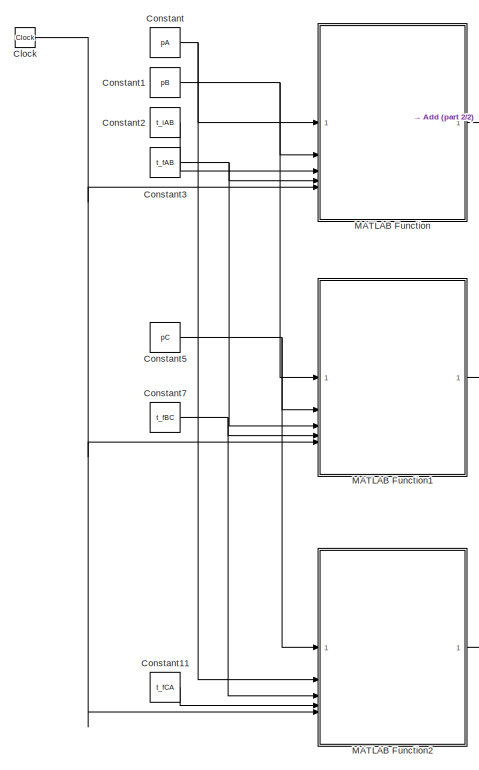
[diagram: root canvas - part 1/2, left side, full height]
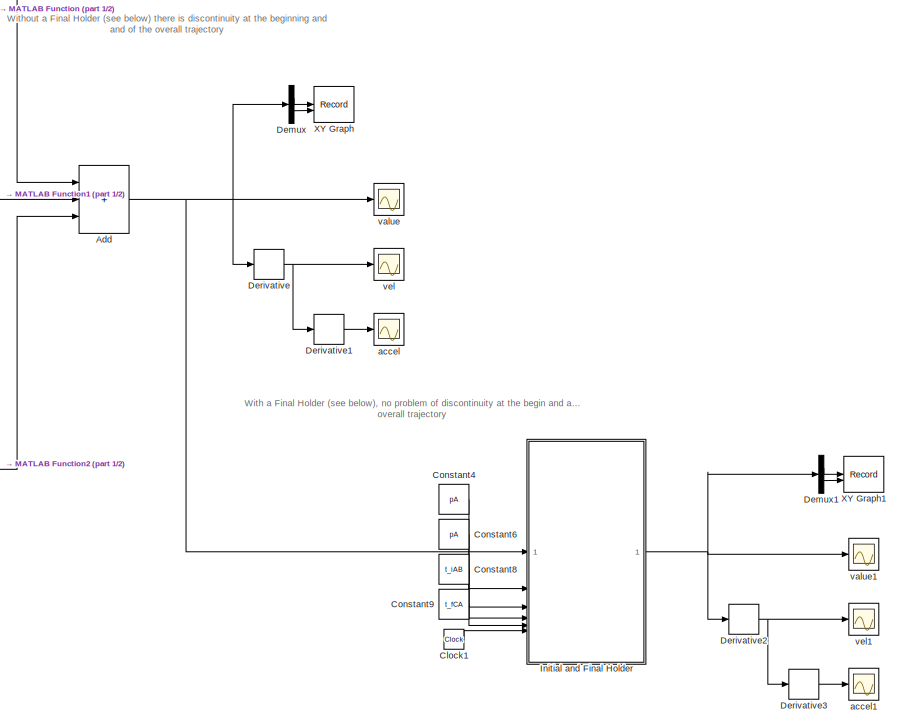
[diagram: root canvas - part 2/2, right side, full height]
MODEL slx_b21bd1f5aaba
KIND model
CONFIG AbsTol = auto
CONFIG EnableMultiTasking = off
CONFIG FixedStep = samplingTime
CONFIG MaxStep = auto
CONFIG MinStep = auto
CONFIG RelTol = 1e-3
CONFIG SampleTimeConstraint = Unconstrained
CONFIG SolverName = FixedStepAuto
CONFIG StartTime = 0.0
CONFIG StopTime = 10.0
BLOCK [Sum] Add
  IconShape = rectangular
  Inputs = +++
BLOCK [Clock] Clock
BLOCK [Clock] Clock1
BLOCK [Constant] Constant
  Value = pA
BLOCK [Constant] Constant1
  Value = pB
BLOCK [Constant] Constant11
  Value = t_fCA
BLOCK [Constant] Constant2
  Value = t_iAB
BLOCK [Constant] Constant3
  Value = t_fAB
BLOCK [Constant] Constant4
  Value = pA
BLOCK [Constant] Constant5
  Value = pC
BLOCK [Constant] Constant6
  Value = pA
BLOCK [Constant] Constant7
  Value = t_fBC
BLOCK [Constant] Constant8
  Value = t_iAB
BLOCK [Constant] Constant9
  Value = t_fCA
BLOCK [Demux] Demux
  Outputs = 2
BLOCK [Demux] Demux1
  Outputs = 2
BLOCK [Derivative] Derivative
BLOCK [Derivative] Derivative1
BLOCK [Derivative] Derivative2
BLOCK [Derivative] Derivative3
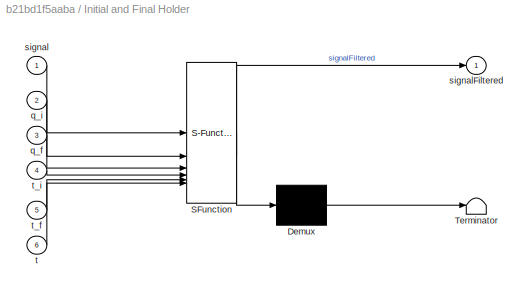
BLOCK [SubSystem] Initial and Final Holder
  ErrorFcn = Stateflow.Translate.translate
  PermitHierarchicalResolution = ExplicitOnly
  SFBlockType = MATLAB Function
  TreatAsAtomicUnit = on
BLOCK [Demux] Initial and Final Holder/ Demux 
  Outputs = 1
BLOCK [S-Function] Initial and Final Holder/ SFunction 
  EnableBusSupport = on
  FunctionName = sf_sfun
  PortCounts = [6 2]
  SFcnIsStateOwnerBlock = off
  SFunctionDeploymentMode = off
  Tag = Stateflow S-Function 4
BLOCK [Terminator] Initial and Final Holder/ Terminator 
BLOCK [Inport] Initial and Final Holder/q_f
  Port = 3
BLOCK [Inport] Initial and Final Holder/q_i
  Port = 2
BLOCK [Inport] Initial and Final Holder/signal
BLOCK [Outport] Initial and Final Holder/signalFiltered
BLOCK [Inport] Initial and Final Holder/t
  Port = 6
BLOCK [Inport] Initial and Final Holder/t_f
  Port = 5
BLOCK [Inport] Initial and Final Holder/t_i
  Port = 4
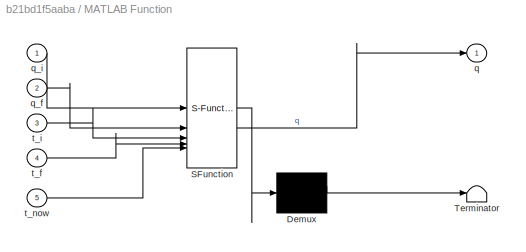
BLOCK [SubSystem] MATLAB Function
  ErrorFcn = Stateflow.Translate.translate
  PermitHierarchicalResolution = ExplicitOnly
  SFBlockType = MATLAB Function
  TreatAsAtomicUnit = on
BLOCK [Demux] MATLAB Function/ Demux 
  Outputs = 1
BLOCK [S-Function] MATLAB Function/ SFunction 
  EnableBusSupport = on
  FunctionName = sf_sfun
  PortCounts = [5 2]
  SFcnIsStateOwnerBlock = off
  SFunctionDeploymentMode = off
  Tag = Stateflow S-Function 2
BLOCK [Terminator] MATLAB Function/ Terminator 
BLOCK [Outport] MATLAB Function/q
BLOCK [Inport] MATLAB Function/q_f
  Port = 2
BLOCK [Inport] MATLAB Function/q_i
BLOCK [Inport] MATLAB Function/t_f
  Port = 4
BLOCK [Inport] MATLAB Function/t_i
  Port = 3
BLOCK [Inport] MATLAB Function/t_now
  Port = 5
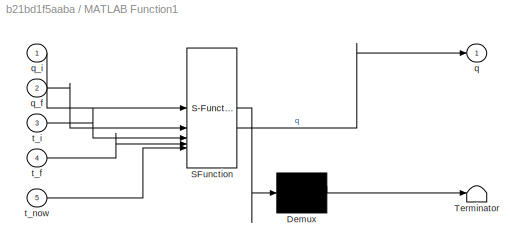
BLOCK [SubSystem] MATLAB Function1
  ErrorFcn = Stateflow.Translate.translate
  PermitHierarchicalResolution = ExplicitOnly
  SFBlockType = MATLAB Function
  TreatAsAtomicUnit = on
BLOCK [Demux] MATLAB Function1/ Demux 
  Outputs = 1
BLOCK [S-Function] MATLAB Function1/ SFunction 
  EnableBusSupport = on
  FunctionName = sf_sfun
  PortCounts = [5 2]
  SFcnIsStateOwnerBlock = off
  SFunctionDeploymentMode = off
  Tag = Stateflow S-Function 1
BLOCK [Terminator] MATLAB Function1/ Terminator 
BLOCK [Outport] MATLAB Function1/q
BLOCK [Inport] MATLAB Function1/q_f
  Port = 2
BLOCK [Inport] MATLAB Function1/q_i
BLOCK [Inport] MATLAB Function1/t_f
  Port = 4
BLOCK [Inport] MATLAB Function1/t_i
  Port = 3
BLOCK [Inport] MATLAB Function1/t_now
  Port = 5
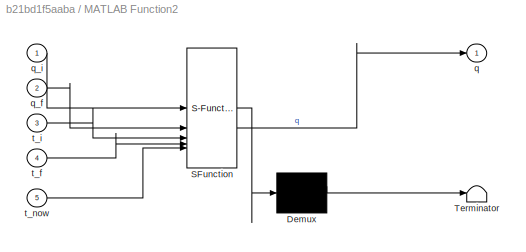
BLOCK [SubSystem] MATLAB Function2
  ErrorFcn = Stateflow.Translate.translate
  PermitHierarchicalResolution = ExplicitOnly
  SFBlockType = MATLAB Function
  TreatAsAtomicUnit = on
BLOCK [Demux] MATLAB Function2/ Demux 
  Outputs = 1
BLOCK [S-Function] MATLAB Function2/ SFunction 
  EnableBusSupport = on
  FunctionName = sf_sfun
  PortCounts = [5 2]
  SFcnIsStateOwnerBlock = off
  SFunctionDeploymentMode = off
  Tag = Stateflow S-Function 3
BLOCK [Terminator] MATLAB Function2/ Terminator 
BLOCK [Outport] MATLAB Function2/q
BLOCK [Inport] MATLAB Function2/q_f
  Port = 2
BLOCK [Inport] MATLAB Function2/q_i
BLOCK [Inport] MATLAB Function2/t_f
  Port = 4
BLOCK [Inport] MATLAB Function2/t_i
  Port = 3
BLOCK [Inport] MATLAB Function2/t_now
  Port = 5
BLOCK [Record] XY Graph
  CompatibilityTag = XY
  FileSettingsInternal = {"entries":[{"content":{"excelSettings":{"content":{},"type":"Streamout.ExcelSettings"}},"type":"Streamout.FileSettingStorage","uuid":""}],"packageUris":["http:\/\/schema.mathworks.com\/mf0\/streamout_blocks\/R2020a"],"version":"1.0"}
  Layout = [1 1]
  SignalsInternal = {"entries":[{"content":{"signals":[{"content":{"blockPath":[],"dimensions":[1,1],"domain":"","lineColor":"#a2142f","plots":[ 1 ],"port":1,"signalID":1,"signalName":"Demux:1"},"type":"RecordBlkView.Signal","uuid":""},{"content":{"blockPath":[],"dimensions":[1,1],"domain":"","lineColor":"#139fff","plots":[ 1 ],"port":2,"signalID":2,"signalName":"Demux:2"},"type":"RecordBlkView.Signal","uuid":""}]},"...<+142ch>
  VisualizationBindings = {"xyplotplugin":{"info":[{"series":[{"bindingParametersList":[{"parameter":"X-Axis","signalID":1,"signalName":"Demux:1"},{"parameter":"Y-Axis","signalID":2,"signalName":"Demux:2"}],"seriesID":0}],"subplotID":1}]}}
BLOCK [Record] XY Graph1
  CompatibilityTag = XY
  FileSettingsInternal = {"entries":[{"content":{"excelSettings":{"content":{},"type":"Streamout.ExcelSettings"}},"type":"Streamout.FileSettingStorage","uuid":""}],"packageUris":["http:\/\/schema.mathworks.com\/mf0\/streamout_blocks\/R2020a"],"version":"1.0"}
  Layout = [1 1]
  SignalsInternal = {"entries":[{"content":{"signals":[{"content":{"blockPath":[],"dimensions":[1,1],"domain":"","lineColor":"#a2142f","plots":[ 1 ],"port":1,"signalID":1,"signalName":"Demux1:1"},"type":"RecordBlkView.Signal","uuid":""},{"content":{"blockPath":[],"dimensions":[1,1],"domain":"","lineColor":"#139fff","plots":[ 1 ],"port":2,"signalID":2,"signalName":"Demux1:2"},"type":"RecordBlkView.Signal","uuid":""}]}...<+144ch>
  VisualizationBindings = {"xyplotplugin":{"info":[{"series":[{"bindingParametersList":[{"parameter":"X-Axis","signalID":1,"signalName":"Demux1:1"},{"parameter":"Y-Axis","signalID":2,"signalName":"Demux1:2"}],"seriesID":0}],"subplotID":1}]}}
BLOCK [Scope] accel
  Floating = off
  NumInputPorts = 1
  ScopeSpecificationString = Simulink.scopes.TimeScopeBlockCfg('CurrentConfiguration', extmgr.ConfigurationSet(extmgr.Configuration('Core','General UI',true),extmgr.Configuration('Core','Source UI',true),extmgr.Configuration('Sources','WiredSimulink',true,'DataLoggingVariableName','ScopeData2'),extmgr.Configuration('Visuals','Time Domain',true,'SerializedDisplays',{struct('MinYLimReal','-468.74787','MaxYLimReal','468.74976','...<+1429ch>
BLOCK [Scope] accel1
  Floating = off
  NumInputPorts = 1
  ScopeSpecificationString = Simulink.scopes.TimeScopeBlockCfg('CurrentConfiguration', extmgr.ConfigurationSet(extmgr.Configuration('Core','General UI',true),extmgr.Configuration('Core','Source UI',true),extmgr.Configuration('Sources','WiredSimulink',true,'DataLoggingVariableName','ScopeData3'),extmgr.Configuration('Visuals','Time Domain',true,'SerializedDisplays',{struct('MinYLimReal','-25.24912','MaxYLimReal','25.24912','YL...<+1394ch>
BLOCK [Scope] value
  Floating = off
  NumInputPorts = 1
  ScopeSpecificationString = Simulink.scopes.TimeScopeBlockCfg('CurrentConfiguration', extmgr.ConfigurationSet(extmgr.Configuration('Core','General UI',true),extmgr.Configuration('Core','Source UI',true),extmgr.Configuration('Sources','WiredSimulink',true),extmgr.Configuration('Visuals','Time Domain',true,'SerializedDisplays',{struct('MinYLimReal','-0.75','MaxYLimReal','6.75','YLabelReal','','MinYLimMag','0.00000','MaxYLimMag...<+1344ch>
BLOCK [Scope] value1
  Floating = off
  NumInputPorts = 1
  ScopeSpecificationString = Simulink.scopes.TimeScopeBlockCfg('CurrentConfiguration', extmgr.ConfigurationSet(extmgr.Configuration('Core','General UI',true),extmgr.Configuration('Core','Source UI',true),extmgr.Configuration('Sources','WiredSimulink',true,'DataLoggingVariableName','ScopeData4'),extmgr.Configuration('Visuals','Time Domain',true,'SerializedDisplays',{struct('MinYLimReal','-0.75','MaxYLimReal','6.75','YLabelReal...<+1370ch>
BLOCK [Scope] vel
  Floating = off
  NumInputPorts = 1
  ScopeSpecificationString = Simulink.scopes.TimeScopeBlockCfg('CurrentConfiguration', extmgr.ConfigurationSet(extmgr.Configuration('Core','General UI',true),extmgr.Configuration('Core','Source UI',true),extmgr.Configuration('Sources','WiredSimulink',true,'DataLoggingVariableName','ScopeData1'),extmgr.Configuration('Visuals','Time Domain',true,'SerializedDisplays',{struct('MinYLimReal','-468.74787','MaxYLimReal','468.74976','...<+1429ch>
BLOCK [Scope] vel1
  Floating = off
  NumInputPorts = 1
  ScopeSpecificationString = Simulink.scopes.TimeScopeBlockCfg('CurrentConfiguration', extmgr.ConfigurationSet(extmgr.Configuration('Core','General UI',true),extmgr.Configuration('Core','Source UI',true),extmgr.Configuration('Sources','WiredSimulink',true,'DataLoggingVariableName','ScopeData5'),extmgr.Configuration('Visuals','Time Domain',true,'SerializedDisplays',{struct('MinYLimReal','-8.08559','MaxYLimReal','7.14813','YLab...<+1521ch>
ANNOTATION (root): With a Final Holder (see below), no problem of discontinuity at the begin and and of the overall trajectory
ANNOTATION (root): Without a Final Holder (see below) there is discontinuity at the beginning and and of the overall trajectory
NET Add:1 -> Demux:1, Derivative:1, Initial and Final Holder:1, value:1
LINE Clock1:1 -> Initial and Final Holder:6
NET Clock:1 -> MATLAB Function1:5, MATLAB Function2:5, MATLAB Function:5
LINE Constant11:1 -> MATLAB Function2:4
NET Constant1:1 -> MATLAB Function1:1, MATLAB Function:2
LINE Constant2:1 -> MATLAB Function:3
NET Constant3:1 -> MATLAB Function1:3, MATLAB Function:4
LINE Constant4:1 -> Initial and Final Holder:2
NET Constant5:1 -> MATLAB Function1:2, MATLAB Function2:1
LINE Constant6:1 -> Initial and Final Holder:3
NET Constant7:1 -> MATLAB Function1:4, MATLAB Function2:3
LINE Constant8:1 -> Initial and Final Holder:4
LINE Constant9:1 -> Initial and Final Holder:5
NET Constant:1 -> MATLAB Function2:2, MATLAB Function:1
LINE Demux1:1 -> XY Graph1:1
LINE Demux1:2 -> XY Graph1:2
LINE Demux:1 -> XY Graph:1
LINE Demux:2 -> XY Graph:2
LINE Derivative1:1 -> accel:1
NET Derivative2:1 -> Derivative3:1, vel1:1
LINE Derivative3:1 -> accel1:1
NET Derivative:1 -> Derivative1:1, vel:1
NET Initial and Final Holder:1 -> Demux1:1, Derivative2:1, value1:1
LINE MATLAB Function1:1 -> Add:2
LINE MATLAB Function2:1 -> Add:3
LINE MATLAB Function:1 -> Add:1
note: NET lines group one-source signal fan-out (src -> all destinations, sorted); 1:1 wires keep LINE
CHART MATLAB Function1 states=1 transitions=1
  STATE_LABEL 'eML_blk_kernel()'
  STATE_LABEL 'SCRIPT:\nfunction q = poly5_twoPoints_wrap(q_i, q_f, t_i, t_f, t_now)\nq = poly5PnP(q_i, q_f, t_i, t_f, t_now);\n'
CHART MATLAB Function states=1 transitions=1
  STATE_LABEL 'eML_blk_kernel()'
  STATE_LABEL 'SCRIPT:\nfunction q = poly5_twoPoints_wrap(q_i, q_f, t_i, t_f, t_now)\nq = poly5PnP(q_i, q_f, t_i, t_f, t_now);\n'
CHART MATLAB Function2 states=1 transitions=1
  STATE_LABEL 'eML_blk_kernel()'
  STATE_LABEL 'SCRIPT:\nfunction q = poly5_twoPoints_wrap(q_i, q_f, t_i, t_f, t_now)\nq = poly5PnP(q_i, q_f, t_i, t_f, t_now);\n'
CHART Initial and Final Holder states=1 transitions=1
  STATE_LABEL 'eML_blk_kernel()'
  STATE_LABEL 'SCRIPT:\nfunction signalFiltered = fcn(signal, q_i, q_f, t_i, t_f, t)\n\nif t < t_i\n    signalFiltered = q_i;\nelseif t >= t_f\n    signalFiltered = q_f;\nelse\n    signalFiltered = signal;\nend'
CHART  states=0 transitions=0
CHART  states=0 transitions=0
CHART  states=0 transitions=0
CHART  states=0 transitions=0
